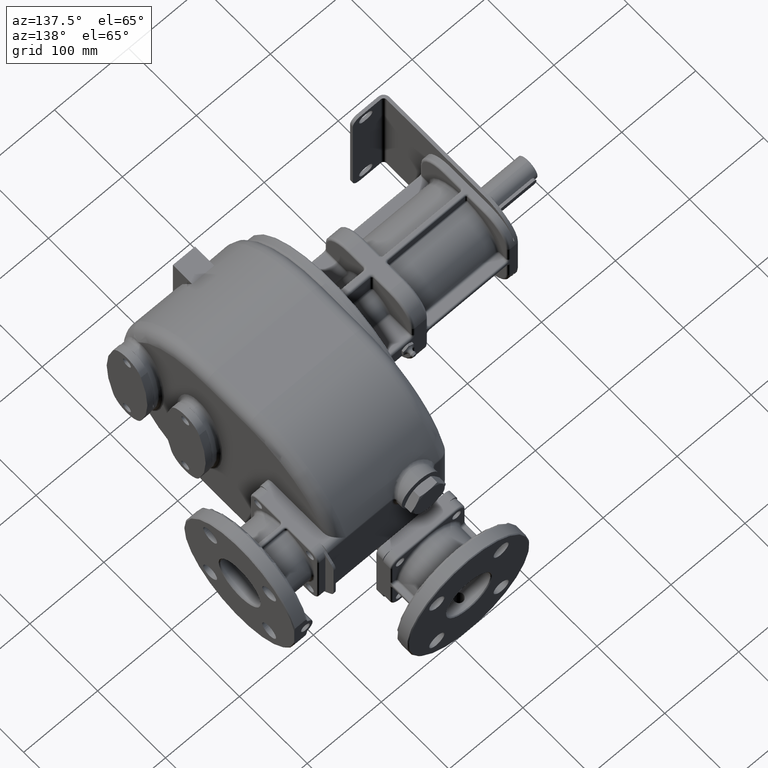
[diagram: clean part render]
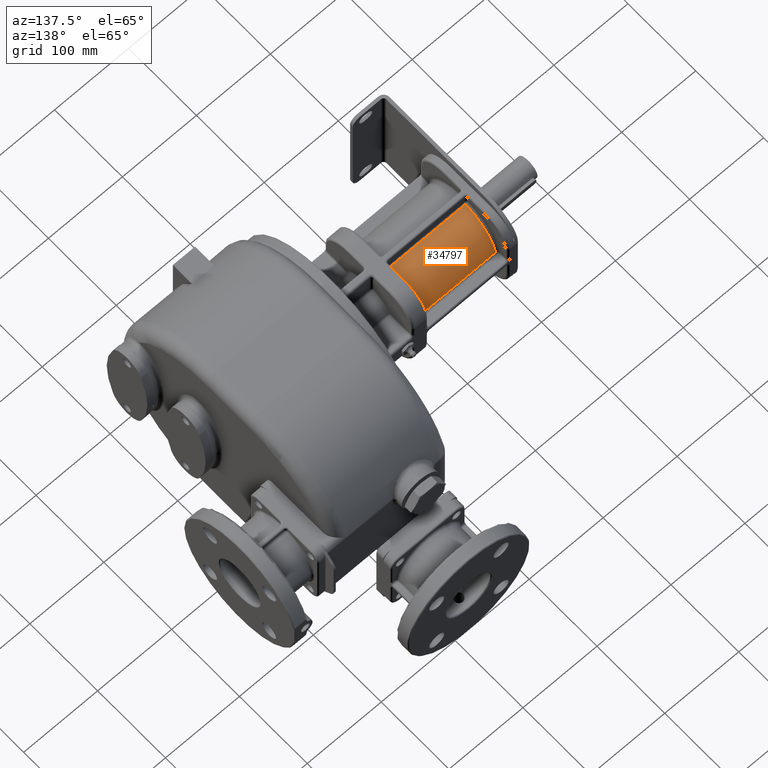
[diagram: same view with one face highlighted and labeled with its STEP entity id]
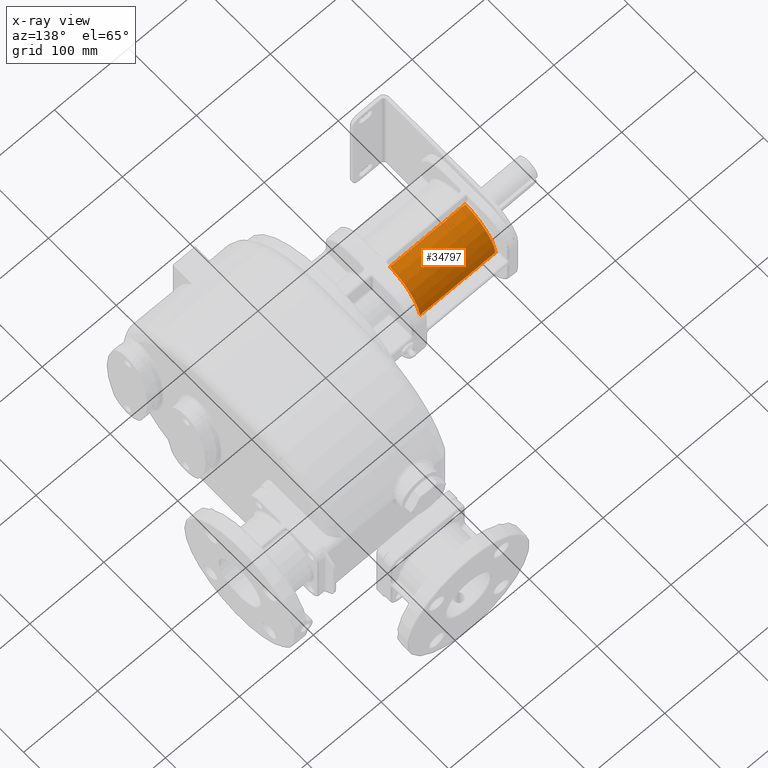
[diagram: x-ray of the same camera — body ghosted, the highlighted face saturated]
A machine part, auxiliary view. The second image highlights one B-rep face of the part: STEP entity #34797.
The next image is the same camera in x-ray: the body ghosted, the highlighted face saturated — about 0% of this face is hidden behind the body in this view.
In plain terms, the highlighted cylindrical surface (partial cylindrical patch) has radius 50 mm, axis along (-1, 0, 0).
Its self-contained STEP definition (entity closure, byte-faithful):
#14564=CARTESIAN_POINT('',(-1.525E2,1.32E2,0.E0));
#14565=DIRECTION('',(-1.E0,0.E0,0.E0));
#14566=DIRECTION('',(0.E0,1.057692307692E-1,9.943907028037E-1));
#14567=AXIS2_PLACEMENT_3D('',#14564,#14565,#14566);
#14579=DIRECTION('',(-1.E0,3.728259531165E-13,3.501582466247E-12));
#14580=VECTOR('',#14579,1.02E2);
#14581=CARTESIAN_POINT('',(-1.525E2,1.372884615390E2,4.971953514554E1));
#14582=LINE('',#14581,#14580);
#14583=DIRECTION('',(1.E0,0.E0,0.E0));
#14584=VECTOR('',#14583,1.02E2);
#14585=CARTESIAN_POINT('',(-2.545E2,1.816225518329E2,6.132075471697E0));
#14586=LINE('',#14585,#14584);
#14597=CARTESIAN_POINT('',(-2.545E2,1.372884615391E2,4.971953514590E1));
#14643=CARTESIAN_POINT('',(-2.545E2,1.32E2,0.E0));
#14644=DIRECTION('',(1.E0,0.E0,0.E0));
#14645=DIRECTION('',(0.E0,9.924510366581E-1,1.226415094339E-1));
#14646=AXIS2_PLACEMENT_3D('',#14643,#14644,#14645);
#17792=CARTESIAN_POINT('',(-1.525E2,1.816225518329E2,6.132075471697E0));
#17793=VERTEX_POINT('',#17792);
#17794=CARTESIAN_POINT('',(-2.545E2,1.816225518329E2,6.132075471697E0));
#17795=VERTEX_POINT('',#17794);
#17930=VERTEX_POINT('',#14597);
#17931=CARTESIAN_POINT('',(-1.525E2,1.372884615390E2,4.971953514554E1));
#17932=VERTEX_POINT('',#17931);
#34783=CARTESIAN_POINT('',(-1.276E2,1.32E2,0.E0));
#34784=DIRECTION('',(-1.E0,0.E0,0.E0));
#34785=DIRECTION('',(0.E0,-1.E0,1.615374500830E-14));
#34786=AXIS2_PLACEMENT_3D('',#34783,#34784,#34785);
#34787=CYLINDRICAL_SURFACE('',#34786,5.E1);
#34789=ORIENTED_EDGE('',*,*,#34788,.T.);
#34791=ORIENTED_EDGE('',*,*,#34790,.F.);
#34793=ORIENTED_EDGE('',*,*,#34792,.T.);
#34794=ORIENTED_EDGE('',*,*,#34775,.F.);
#34795=EDGE_LOOP('',(#34789,#34791,#34793,#34794));
#34796=FACE_OUTER_BOUND('',#34795,.F.);
#34797=ADVANCED_FACE('',(#34796),#34787,.T.);
#14568=CIRCLE('',#14567,5.E1);
#14647=CIRCLE('',#14646,5.E1);
#34775=EDGE_CURVE('',#17932,#17793,#14568,.T.);
#34788=EDGE_CURVE('',#17932,#17930,#14582,.T.);
#34790=EDGE_CURVE('',#17795,#17930,#14647,.T.);
#34792=EDGE_CURVE('',#17795,#17793,#14586,.T.);